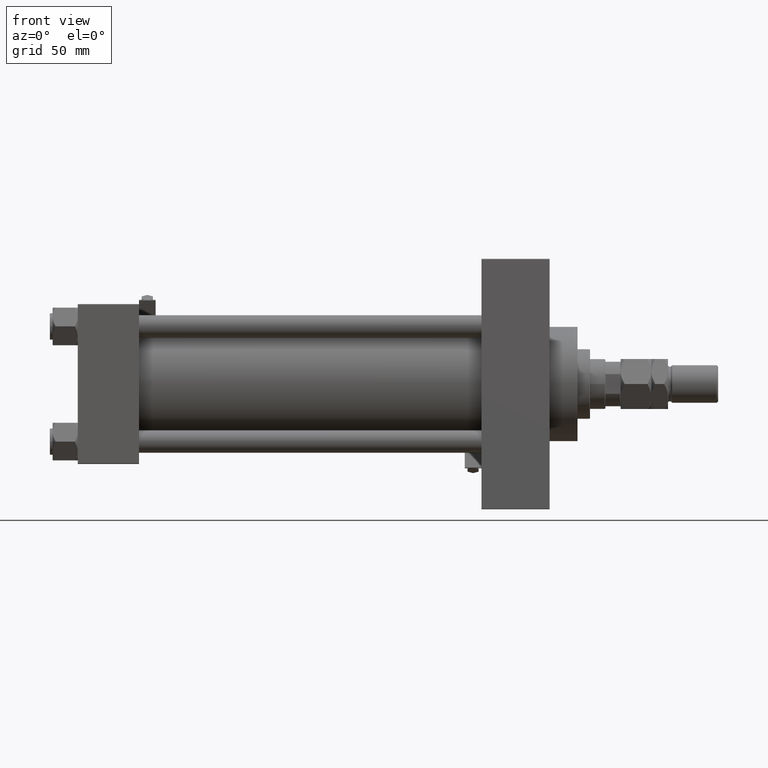
[diagram: clean part render]
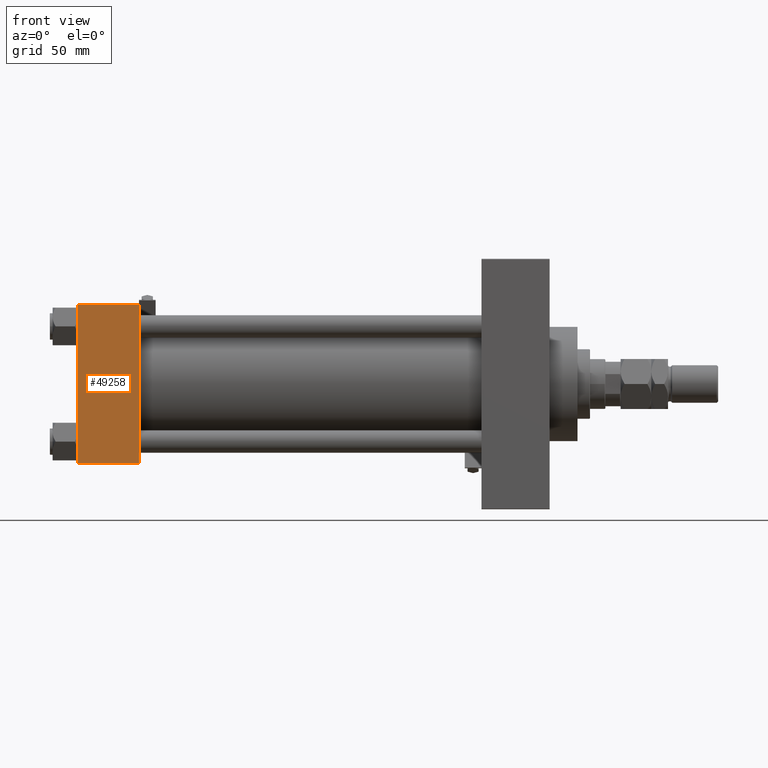
[diagram: same view with one face highlighted and labeled with its STEP entity id]
A machine part, front view. The second image highlights one B-rep face of the part: STEP entity #49258.
In plain terms, the highlighted planar face has unit normal (0, 1, 0).
Its self-contained STEP definition (entity closure, byte-faithful):
#1676 = CARTESIAN_POINT ( 'NONE',  ( 0.000000000000000000, -57.50000000000000711, 57.00000000000000711 ) ) ;
#2779 = ORIENTED_EDGE ( 'NONE', *, *, #48544, .T. ) ;
#3088 = DIRECTION ( 'NONE',  ( 0.000000000000000000, 0.000000000000000000, -1.000000000000000000 ) ) ;
#4857 = LINE ( 'NONE', #16572, #15942 ) ;
#5142 = CARTESIAN_POINT ( 'NONE',  ( 44.00000000000000000, -57.50000000000000711, 57.49999999999999289 ) ) ;
#5387 = DIRECTION ( 'NONE',  ( -0.000000000000000000, 1.000000000000000000, 0.000000000000000000 ) ) ;
#6899 = LINE ( 'NONE', #17612, #29634 ) ;
#7482 = VERTEX_POINT ( 'NONE', #1676 ) ;
#7823 = DIRECTION ( 'NONE',  ( -1.000000000000000000, 0.000000000000000000, 0.000000000000000000 ) ) ;
#8579 = CARTESIAN_POINT ( 'NONE',  ( 44.00000000000000000, -57.50000000000000711, 57.00000000000000711 ) ) ;
#8846 = EDGE_CURVE ( 'NONE', #7482, #11946, #6899, .T. ) ;
#11946 = VERTEX_POINT ( 'NONE', #21962 ) ;
#12798 = EDGE_CURVE ( 'NONE', #31147, #43199, #4857, .T. ) ;
#14174 = EDGE_LOOP ( 'NONE', ( #18142, #34687, #48931, #2779 ) ) ;
#14775 = AXIS2_PLACEMENT_3D ( 'NONE', #5142, #5387, #25267 ) ;
#15942 = VECTOR ( 'NONE', #33389, 1000.000000000000000 ) ;
#16572 = CARTESIAN_POINT ( 'NONE',  ( 44.00000000000000000, -57.50000000000000711, 57.49999999999999289 ) ) ;
#17612 = CARTESIAN_POINT ( 'NONE',  ( 0.000000000000000000, -57.50000000000000711, 57.49999999999999289 ) ) ;
#18142 = ORIENTED_EDGE ( 'NONE', *, *, #8846, .T. ) ;
#21962 = CARTESIAN_POINT ( 'NONE',  ( 0.000000000000000000, -57.50000000000000711, -57.00000000000000711 ) ) ;
#24274 = VECTOR ( 'NONE', #25173, 1000.000000000000000 ) ;
#25173 = DIRECTION ( 'NONE',  ( 1.000000000000000000, 0.000000000000000000, 0.000000000000000000 ) ) ;
#25267 = DIRECTION ( 'NONE',  ( 0.000000000000000000, -0.000000000000000000, 1.000000000000000000 ) ) ;
#29634 = VECTOR ( 'NONE', #3088, 1000.000000000000000 ) ;
#31147 = VERTEX_POINT ( 'NONE', #39856 ) ;
#32148 = FACE_OUTER_BOUND ( 'NONE', #14174, .T. ) ;
#32402 = PLANE ( 'NONE',  #14775 ) ;
#33389 = DIRECTION ( 'NONE',  ( 0.000000000000000000, 0.000000000000000000, -1.000000000000000000 ) ) ;
#34687 = ORIENTED_EDGE ( 'NONE', *, *, #39700, .T. ) ;
#35600 = CARTESIAN_POINT ( 'NONE',  ( 44.00000000000000000, -57.50000000000000711, -57.00000000000000711 ) ) ;
#37142 = LINE ( 'NONE', #44027, #24274 ) ;
#39700 = EDGE_CURVE ( 'NONE', #11946, #43199, #37142, .T. ) ;
#39856 = CARTESIAN_POINT ( 'NONE',  ( 44.00000000000000000, -57.50000000000000711, 57.00000000000000711 ) ) ;
#41600 = VECTOR ( 'NONE', #7823, 1000.000000000000000 ) ;
#43199 = VERTEX_POINT ( 'NONE', #35600 ) ;
#43489 = LINE ( 'NONE', #8579, #41600 ) ;
#44027 = CARTESIAN_POINT ( 'NONE',  ( 44.00000000000000000, -57.50000000000000711, -57.00000000000000711 ) ) ;
#48544 = EDGE_CURVE ( 'NONE', #31147, #7482, #43489, .T. ) ;
#48931 = ORIENTED_EDGE ( 'NONE', *, *, #12798, .F. ) ;
#49258 = ADVANCED_FACE ( 'NONE', ( #32148 ), #32402, .F. ) ;